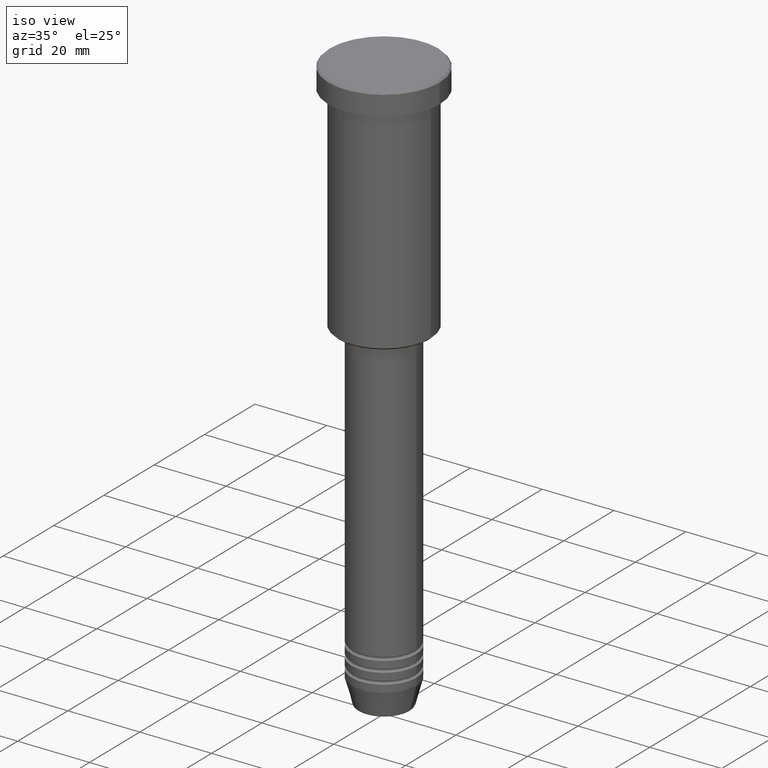
[diagram: clean part render]
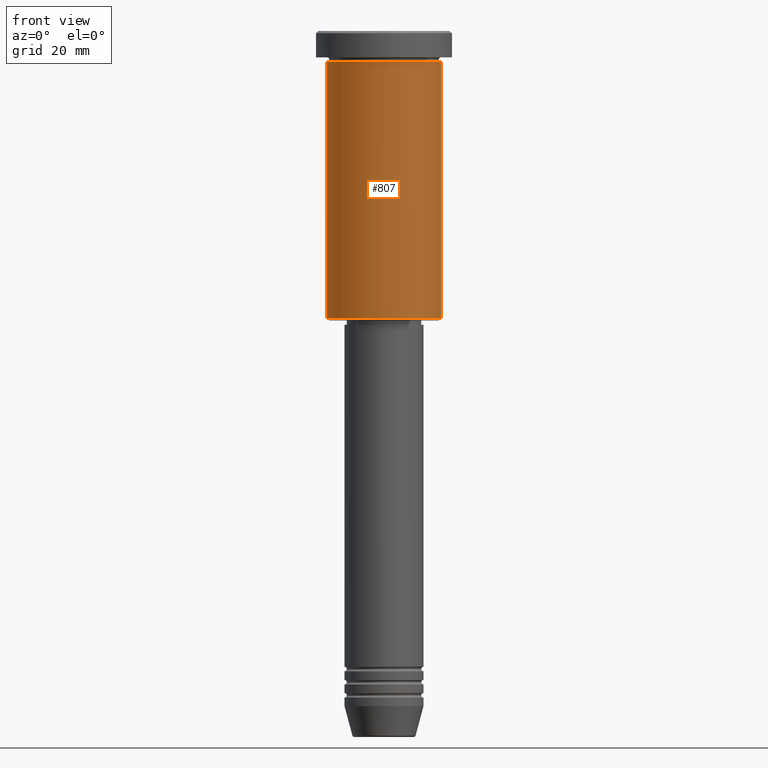
[diagram: tour spotlight — one face highlighted and labeled with its STEP entity id]
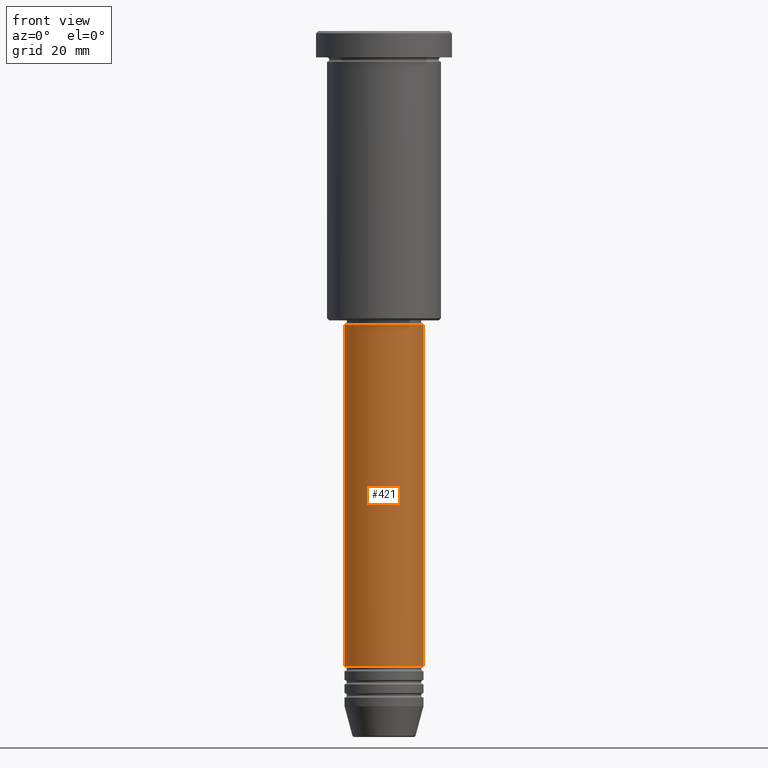
[diagram: tour spotlight — one face highlighted and labeled with its STEP entity id]
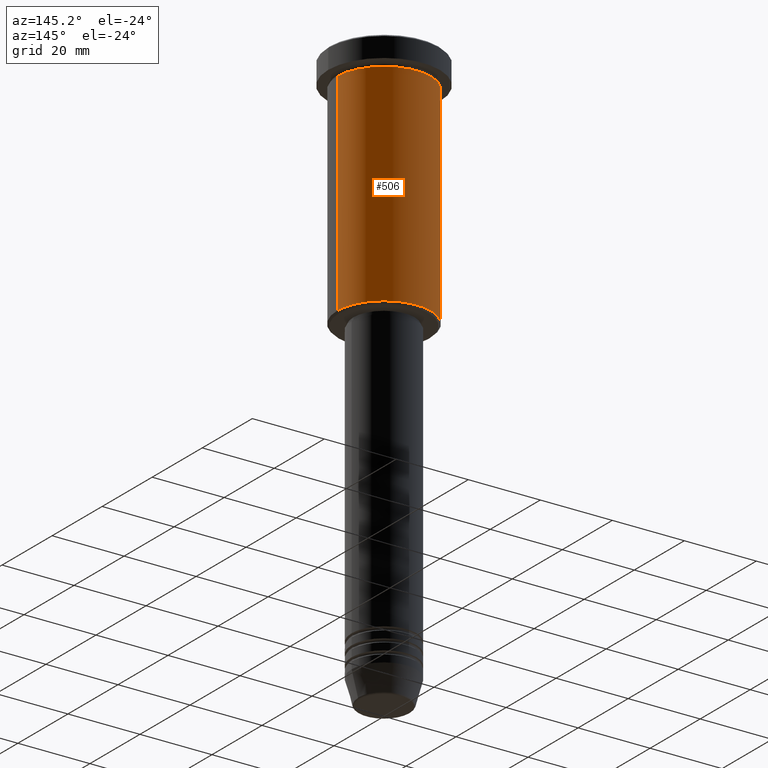
[diagram: tour spotlight — one face highlighted and labeled with its STEP entity id]
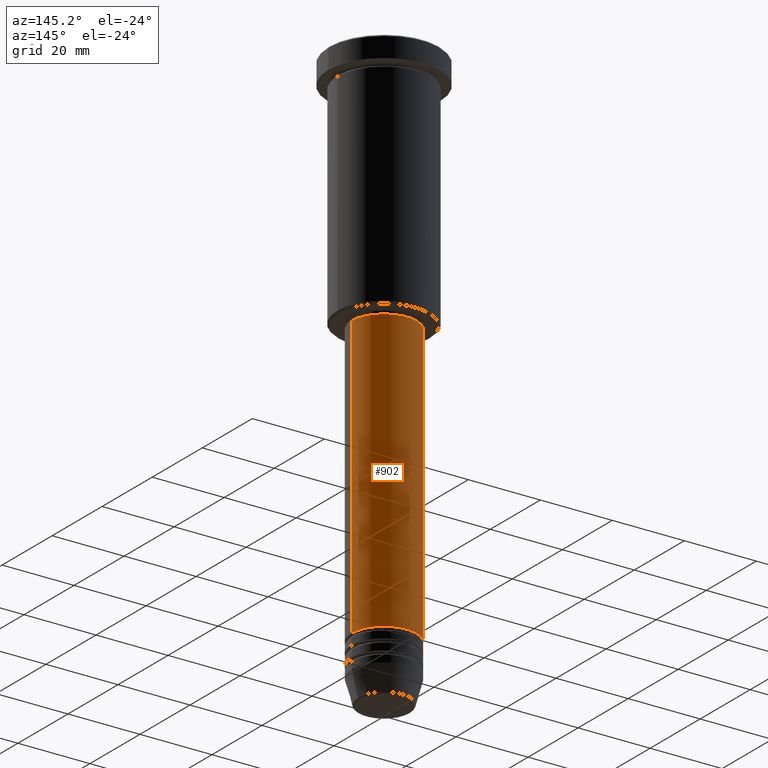
[diagram: tour spotlight — one face highlighted and labeled with its STEP entity id]
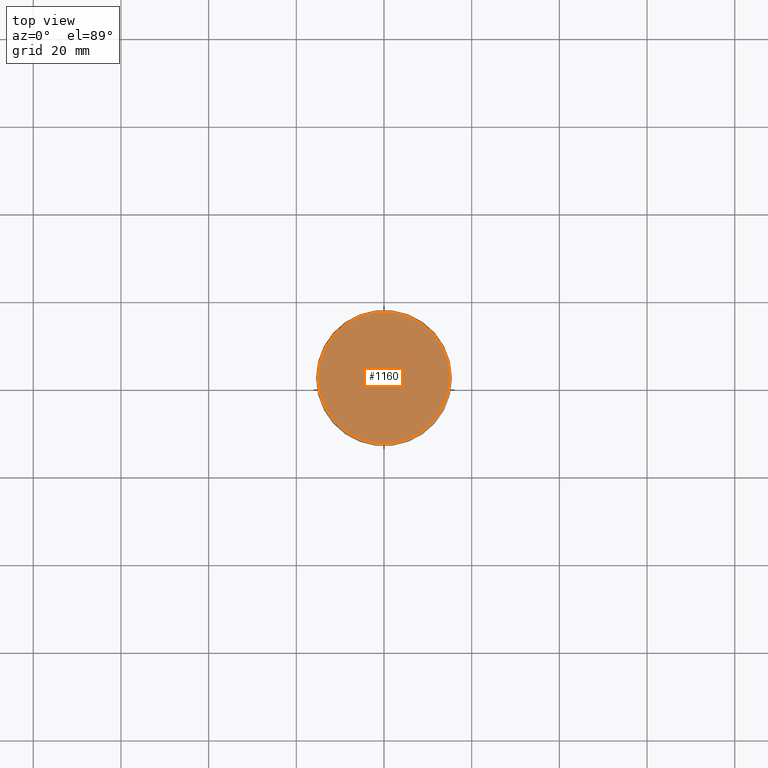
[diagram: tour spotlight — one face highlighted and labeled with its STEP entity id]
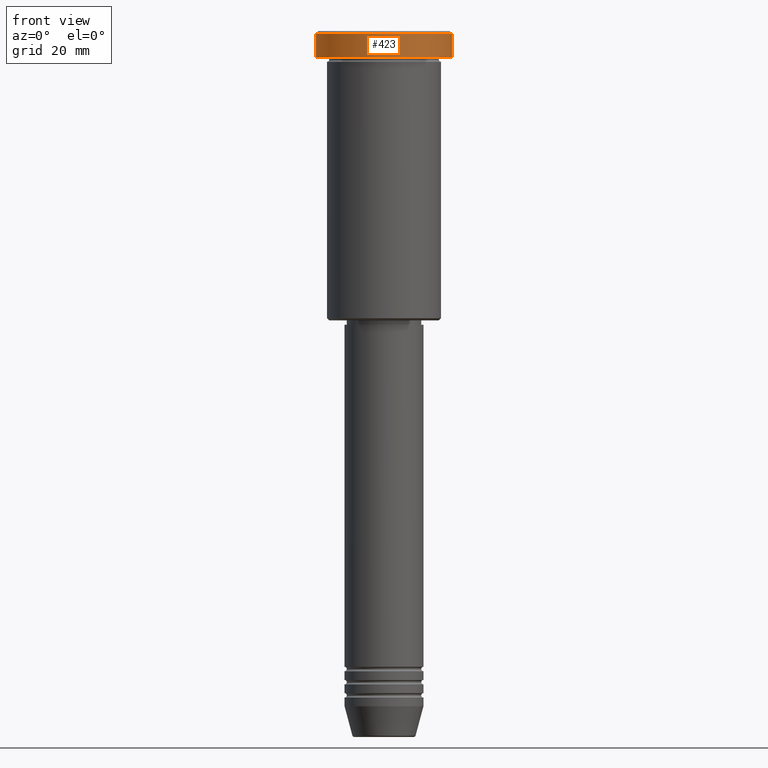
[diagram: tour spotlight — one face highlighted and labeled with its STEP entity id]
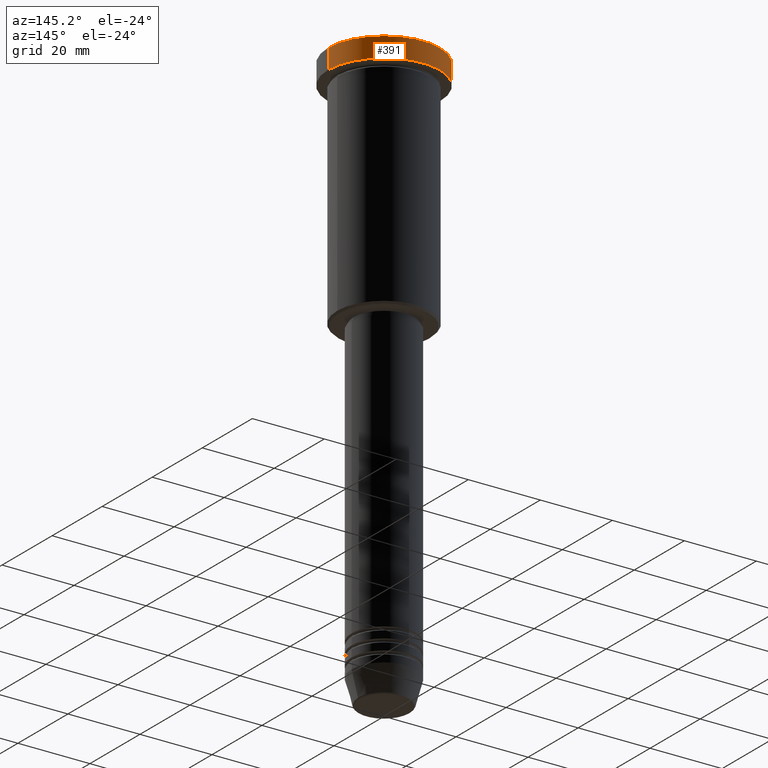
[diagram: tour spotlight — one face highlighted and labeled with its STEP entity id]
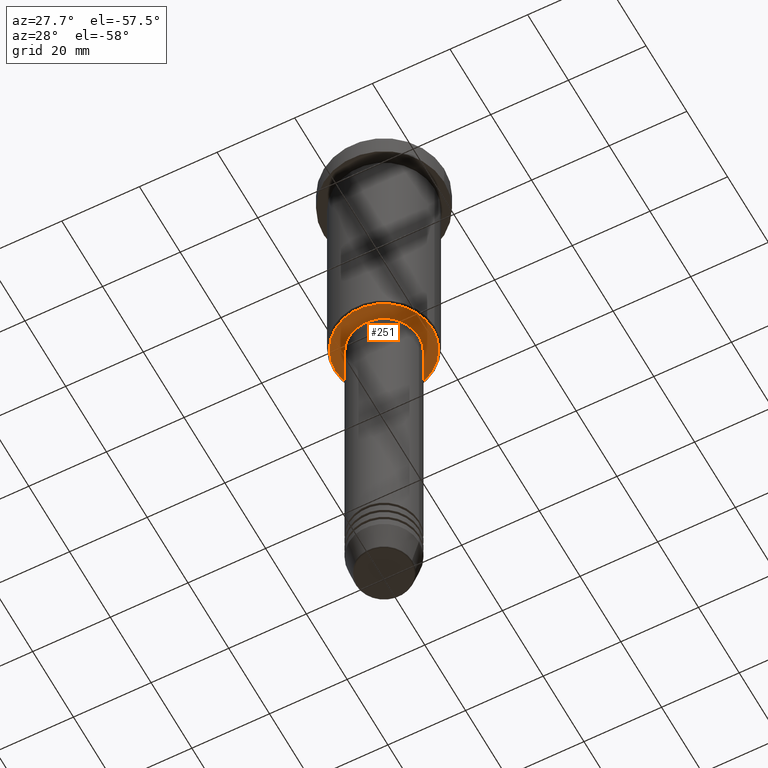
[diagram: tour spotlight — one face highlighted and labeled with its STEP entity id]
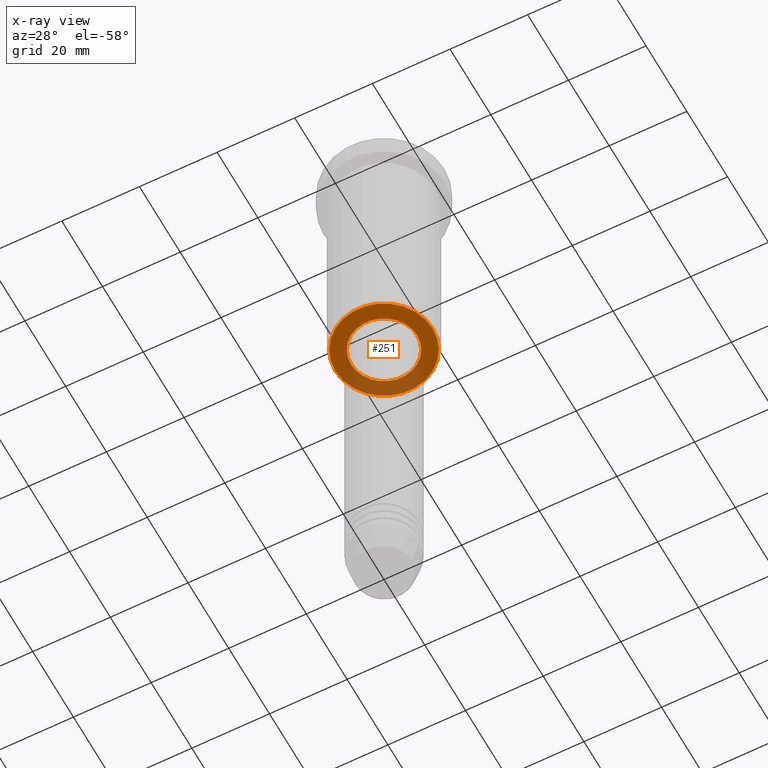
[diagram: x-ray of the same camera — body ghosted, this tour face saturated]
A machine part: a face-by-face anatomy tour. The part has 43 B-rep faces; the first image is the clean iso view, then the 8 largest visible faces are spotlighted one at a time (largest first), each with its STEP entity span.

Face 1 — front view, entity #807. In plain terms, the highlighted cylindrical surface (partial cylindrical patch) has radius 13 mm, axis along (-0, -0, 1).
Definition (entity closure, byte-faithful):
#6 = CARTESIAN_POINT ( 'NONE',  ( 0.000000000000000000, 0.000000000000000000, -6.999999999999995559 ) ) ;
#41 = CYLINDRICAL_SURFACE ( 'NONE', #201, 13.00000000000000000 ) ;
#74 = CARTESIAN_POINT ( 'NONE',  ( 13.00000000000000000, 0.000000000000000000, -6.999999999999995559 ) ) ;
#76 = CARTESIAN_POINT ( 'NONE',  ( 13.00000000000000000, 0.000000000000000000, -65.49999999999997158 ) ) ;
#86 = DIRECTION ( 'NONE',  ( -0.000000000000000000, -0.000000000000000000, 1.000000000000000000 ) ) ;
#89 = VERTEX_POINT ( 'NONE', #74 ) ;
#153 = EDGE_CURVE ( 'NONE', #658, #370, #529, .T. ) ;
#201 = AXIS2_PLACEMENT_3D ( 'NONE', #691, #1150, #1048 ) ;
#215 = EDGE_CURVE ( 'NONE', #950, #89, #474, .T. ) ;
#222 = EDGE_CURVE ( 'NONE', #658, #950, #535, .T. ) ;
#228 = FACE_OUTER_BOUND ( 'NONE', #1050, .T. ) ;
#232 = VECTOR ( 'NONE', #86, 1000.000000000000000 ) ;
#365 = AXIS2_PLACEMENT_3D ( 'NONE', #1019, #553, #843 ) ;
#370 = VERTEX_POINT ( 'NONE', #1045 ) ;
#378 = DIRECTION ( 'NONE',  ( -0.000000000000000000, -0.000000000000000000, 1.000000000000000000 ) ) ;
#457 = DIRECTION ( 'NONE',  ( -0.000000000000000000, -0.000000000000000000, 1.000000000000000000 ) ) ;
#474 = LINE ( 'NONE', #940, #873 ) ;
#529 = LINE ( 'NONE', #623, #232 ) ;
#535 = CIRCLE ( 'NONE', #365, 13.00000000000000000 ) ;
#548 = ORIENTED_EDGE ( 'NONE', *, *, #215, .T. ) ;
#553 = DIRECTION ( 'NONE',  ( -0.000000000000000000, -0.000000000000000000, 1.000000000000000000 ) ) ;
#559 = CARTESIAN_POINT ( 'NONE',  ( -13.00000000000000000, 1.592040838891559095E-15, -65.49999999999997158 ) ) ;
#623 = CARTESIAN_POINT ( 'NONE',  ( -13.00000000000000000, 1.592040838891559095E-15, 0.000000000000000000 ) ) ;
#637 = ORIENTED_EDGE ( 'NONE', *, *, #222, .T. ) ;
#643 = ORIENTED_EDGE ( 'NONE', *, *, #153, .F. ) ;
#658 = VERTEX_POINT ( 'NONE', #559 ) ;
#691 = CARTESIAN_POINT ( 'NONE',  ( 0.000000000000000000, 0.000000000000000000, 0.000000000000000000 ) ) ;
#748 = CIRCLE ( 'NONE', #1016, 13.00000000000000000 ) ;
#807 = ADVANCED_FACE ( 'NONE', ( #228 ), #41, .T. ) ;
#815 = DIRECTION ( 'NONE',  ( 1.000000000000000000, 0.000000000000000000, 0.000000000000000000 ) ) ;
#843 = DIRECTION ( 'NONE',  ( -1.000000000000000000, 0.000000000000000000, 0.000000000000000000 ) ) ;
#873 = VECTOR ( 'NONE', #378, 1000.000000000000000 ) ;
#940 = CARTESIAN_POINT ( 'NONE',  ( 13.00000000000000000, 0.000000000000000000, 0.000000000000000000 ) ) ;
#950 = VERTEX_POINT ( 'NONE', #76 ) ;
#1016 = AXIS2_PLACEMENT_3D ( 'NONE', #6, #457, #815 ) ;
#1019 = CARTESIAN_POINT ( 'NONE',  ( 0.000000000000000000, 0.000000000000000000, -65.49999999999997158 ) ) ;
#1045 = CARTESIAN_POINT ( 'NONE',  ( -13.00000000000000000, 1.592040838891559095E-15, -6.999999999999995559 ) ) ;
#1046 = ORIENTED_EDGE ( 'NONE', *, *, #1173, .F. ) ;
#1048 = DIRECTION ( 'NONE',  ( 1.000000000000000000, 0.000000000000000000, 0.000000000000000000 ) ) ;
#1050 = EDGE_LOOP ( 'NONE', ( #643, #637, #548, #1046 ) ) ;
#1150 = DIRECTION ( 'NONE',  ( -0.000000000000000000, -0.000000000000000000, 1.000000000000000000 ) ) ;
#1173 = EDGE_CURVE ( 'NONE', #370, #89, #748, .T. ) ;

Face 2 — front view, entity #421. In plain terms, the highlighted cylindrical surface (partial cylindrical patch) has radius 9 mm, axis along (-0, -0, 1).
Definition (entity closure, byte-faithful):
#22 = CARTESIAN_POINT ( 'NONE',  ( -9.000000000000000000, 1.102182119232617714E-15, -67.00000000000000000 ) ) ;
#33 = CIRCLE ( 'NONE', #179, 9.000000000000000000 ) ;
#48 = AXIS2_PLACEMENT_3D ( 'NONE', #1140, #968, #403 ) ;
#54 = DIRECTION ( 'NONE',  ( -0.000000000000000000, -0.000000000000000000, 1.000000000000000000 ) ) ;
#92 = DIRECTION ( 'NONE',  ( 1.000000000000000000, 0.000000000000000000, 0.000000000000000000 ) ) ;
#164 = CARTESIAN_POINT ( 'NONE',  ( 9.000000000000000000, 0.000000000000000000, -144.9999999999999716 ) ) ;
#171 = DIRECTION ( 'NONE',  ( 1.000000000000000000, 0.000000000000000000, 0.000000000000000000 ) ) ;
#179 = AXIS2_PLACEMENT_3D ( 'NONE', #1091, #257, #92 ) ;
#192 = EDGE_CURVE ( 'NONE', #943, #494, #33, .T. ) ;
#221 = CYLINDRICAL_SURFACE ( 'NONE', #48, 9.000000000000000000 ) ;
#231 = EDGE_LOOP ( 'NONE', ( #481, #894, #1028, #375 ) ) ;
#257 = DIRECTION ( 'NONE',  ( -0.000000000000000000, -0.000000000000000000, 1.000000000000000000 ) ) ;
#336 = LINE ( 'NONE', #695, #589 ) ;
#375 = ORIENTED_EDGE ( 'NONE', *, *, #593, .F. ) ;
#403 = DIRECTION ( 'NONE',  ( 1.000000000000000000, 0.000000000000000000, 0.000000000000000000 ) ) ;
#421 = ADVANCED_FACE ( 'NONE', ( #1153 ), #221, .T. ) ;
#436 = DIRECTION ( 'NONE',  ( -0.000000000000000000, -0.000000000000000000, 1.000000000000000000 ) ) ;
#481 = ORIENTED_EDGE ( 'NONE', *, *, #942, .F. ) ;
#494 = VERTEX_POINT ( 'NONE', #164 ) ;
#499 = LINE ( 'NONE', #862, #1176 ) ;
#533 = CARTESIAN_POINT ( 'NONE',  ( 0.000000000000000000, 0.000000000000000000, -67.00000000000000000 ) ) ;
#589 = VECTOR ( 'NONE', #436, 1000.000000000000000 ) ;
#593 = EDGE_CURVE ( 'NONE', #661, #613, #956, .T. ) ;
#613 = VERTEX_POINT ( 'NONE', #891 ) ;
#661 = VERTEX_POINT ( 'NONE', #22 ) ;
#695 = CARTESIAN_POINT ( 'NONE',  ( -9.000000000000000000, 1.102182119232617714E-15, 0.000000000000000000 ) ) ;
#700 = DIRECTION ( 'NONE',  ( -0.000000000000000000, -0.000000000000000000, 1.000000000000000000 ) ) ;
#862 = CARTESIAN_POINT ( 'NONE',  ( 9.000000000000000000, 0.000000000000000000, 0.000000000000000000 ) ) ;
#890 = EDGE_CURVE ( 'NONE', #494, #613, #499, .T. ) ;
#891 = CARTESIAN_POINT ( 'NONE',  ( 9.000000000000000000, 0.000000000000000000, -67.00000000000000000 ) ) ;
#894 = ORIENTED_EDGE ( 'NONE', *, *, #192, .T. ) ;
#942 = EDGE_CURVE ( 'NONE', #943, #661, #336, .T. ) ;
#943 = VERTEX_POINT ( 'NONE', #1089 ) ;
#956 = CIRCLE ( 'NONE', #1095, 9.000000000000000000 ) ;
#968 = DIRECTION ( 'NONE',  ( -0.000000000000000000, -0.000000000000000000, 1.000000000000000000 ) ) ;
#1028 = ORIENTED_EDGE ( 'NONE', *, *, #890, .T. ) ;
#1089 = CARTESIAN_POINT ( 'NONE',  ( -9.000000000000000000, 1.102182119232617714E-15, -144.9999999999999716 ) ) ;
#1091 = CARTESIAN_POINT ( 'NONE',  ( 0.000000000000000000, 0.000000000000000000, -144.9999999999999716 ) ) ;
#1095 = AXIS2_PLACEMENT_3D ( 'NONE', #533, #700, #171 ) ;
#1140 = CARTESIAN_POINT ( 'NONE',  ( 0.000000000000000000, 0.000000000000000000, 0.000000000000000000 ) ) ;
#1153 = FACE_OUTER_BOUND ( 'NONE', #231, .T. ) ;
#1176 = VECTOR ( 'NONE', #54, 1000.000000000000000 ) ;

Face 3 — auxiliary view, entity #506. In plain terms, the highlighted cylindrical surface (partial cylindrical patch) has radius 13 mm, axis along (-0, -0, 1).
Definition (entity closure, byte-faithful):
#11 = ORIENTED_EDGE ( 'NONE', *, *, #215, .F. ) ;
#74 = CARTESIAN_POINT ( 'NONE',  ( 13.00000000000000000, 0.000000000000000000, -6.999999999999995559 ) ) ;
#76 = CARTESIAN_POINT ( 'NONE',  ( 13.00000000000000000, 0.000000000000000000, -65.49999999999997158 ) ) ;
#86 = DIRECTION ( 'NONE',  ( -0.000000000000000000, -0.000000000000000000, 1.000000000000000000 ) ) ;
#89 = VERTEX_POINT ( 'NONE', #74 ) ;
#105 = AXIS2_PLACEMENT_3D ( 'NONE', #948, #319, #675 ) ;
#153 = EDGE_CURVE ( 'NONE', #658, #370, #529, .T. ) ;
#162 = AXIS2_PLACEMENT_3D ( 'NONE', #1090, #629, #622 ) ;
#165 = AXIS2_PLACEMENT_3D ( 'NONE', #323, #672, #224 ) ;
#215 = EDGE_CURVE ( 'NONE', #950, #89, #474, .T. ) ;
#224 = DIRECTION ( 'NONE',  ( -1.000000000000000000, 0.000000000000000000, 0.000000000000000000 ) ) ;
#232 = VECTOR ( 'NONE', #86, 1000.000000000000000 ) ;
#274 = ORIENTED_EDGE ( 'NONE', *, *, #864, .T. ) ;
#319 = DIRECTION ( 'NONE',  ( -0.000000000000000000, -0.000000000000000000, 1.000000000000000000 ) ) ;
#323 = CARTESIAN_POINT ( 'NONE',  ( 0.000000000000000000, 0.000000000000000000, -65.49999999999997158 ) ) ;
#369 = ORIENTED_EDGE ( 'NONE', *, *, #876, .F. ) ;
#370 = VERTEX_POINT ( 'NONE', #1045 ) ;
#378 = DIRECTION ( 'NONE',  ( -0.000000000000000000, -0.000000000000000000, 1.000000000000000000 ) ) ;
#474 = LINE ( 'NONE', #940, #873 ) ;
#506 = ADVANCED_FACE ( 'NONE', ( #882 ), #617, .T. ) ;
#529 = LINE ( 'NONE', #623, #232 ) ;
#559 = CARTESIAN_POINT ( 'NONE',  ( -13.00000000000000000, 1.592040838891559095E-15, -65.49999999999997158 ) ) ;
#609 = CIRCLE ( 'NONE', #105, 13.00000000000000000 ) ;
#617 = CYLINDRICAL_SURFACE ( 'NONE', #162, 13.00000000000000000 ) ;
#622 = DIRECTION ( 'NONE',  ( 1.000000000000000000, 0.000000000000000000, 0.000000000000000000 ) ) ;
#623 = CARTESIAN_POINT ( 'NONE',  ( -13.00000000000000000, 1.592040838891559095E-15, 0.000000000000000000 ) ) ;
#629 = DIRECTION ( 'NONE',  ( -0.000000000000000000, -0.000000000000000000, 1.000000000000000000 ) ) ;
#658 = VERTEX_POINT ( 'NONE', #559 ) ;
#670 = CIRCLE ( 'NONE', #165, 13.00000000000000000 ) ;
#672 = DIRECTION ( 'NONE',  ( -0.000000000000000000, -0.000000000000000000, 1.000000000000000000 ) ) ;
#675 = DIRECTION ( 'NONE',  ( 1.000000000000000000, 0.000000000000000000, 0.000000000000000000 ) ) ;
#864 = EDGE_CURVE ( 'NONE', #950, #658, #670, .T. ) ;
#873 = VECTOR ( 'NONE', #378, 1000.000000000000000 ) ;
#876 = EDGE_CURVE ( 'NONE', #89, #370, #609, .T. ) ;
#882 = FACE_OUTER_BOUND ( 'NONE', #990, .T. ) ;
#904 = ORIENTED_EDGE ( 'NONE', *, *, #153, .T. ) ;
#940 = CARTESIAN_POINT ( 'NONE',  ( 13.00000000000000000, 0.000000000000000000, 0.000000000000000000 ) ) ;
#948 = CARTESIAN_POINT ( 'NONE',  ( 0.000000000000000000, 0.000000000000000000, -6.999999999999995559 ) ) ;
#950 = VERTEX_POINT ( 'NONE', #76 ) ;
#990 = EDGE_LOOP ( 'NONE', ( #274, #904, #369, #11 ) ) ;
#1045 = CARTESIAN_POINT ( 'NONE',  ( -13.00000000000000000, 1.592040838891559095E-15, -6.999999999999995559 ) ) ;
#1090 = CARTESIAN_POINT ( 'NONE',  ( 0.000000000000000000, 0.000000000000000000, 0.000000000000000000 ) ) ;

Face 4 — auxiliary view, entity #902. In plain terms, the highlighted cylindrical surface (partial cylindrical patch) has radius 9 mm, axis along (-0, -0, 1).
Definition (entity closure, byte-faithful):
#4 = ORIENTED_EDGE ( 'NONE', *, *, #931, .T. ) ;
#14 = AXIS2_PLACEMENT_3D ( 'NONE', #402, #315, #583 ) ;
#22 = CARTESIAN_POINT ( 'NONE',  ( -9.000000000000000000, 1.102182119232617714E-15, -67.00000000000000000 ) ) ;
#54 = DIRECTION ( 'NONE',  ( -0.000000000000000000, -0.000000000000000000, 1.000000000000000000 ) ) ;
#72 = DIRECTION ( 'NONE',  ( -0.000000000000000000, -0.000000000000000000, 1.000000000000000000 ) ) ;
#102 = ORIENTED_EDGE ( 'NONE', *, *, #942, .T. ) ;
#164 = CARTESIAN_POINT ( 'NONE',  ( 9.000000000000000000, 0.000000000000000000, -144.9999999999999716 ) ) ;
#211 = ORIENTED_EDGE ( 'NONE', *, *, #855, .F. ) ;
#235 = CYLINDRICAL_SURFACE ( 'NONE', #518, 9.000000000000000000 ) ;
#256 = CIRCLE ( 'NONE', #897, 9.000000000000000000 ) ;
#315 = DIRECTION ( 'NONE',  ( -0.000000000000000000, -0.000000000000000000, 1.000000000000000000 ) ) ;
#336 = LINE ( 'NONE', #695, #589 ) ;
#402 = CARTESIAN_POINT ( 'NONE',  ( 0.000000000000000000, 0.000000000000000000, -67.00000000000000000 ) ) ;
#436 = DIRECTION ( 'NONE',  ( -0.000000000000000000, -0.000000000000000000, 1.000000000000000000 ) ) ;
#494 = VERTEX_POINT ( 'NONE', #164 ) ;
#499 = LINE ( 'NONE', #862, #1176 ) ;
#516 = DIRECTION ( 'NONE',  ( 1.000000000000000000, 0.000000000000000000, 0.000000000000000000 ) ) ;
#518 = AXIS2_PLACEMENT_3D ( 'NONE', #592, #961, #516 ) ;
#583 = DIRECTION ( 'NONE',  ( 1.000000000000000000, 0.000000000000000000, 0.000000000000000000 ) ) ;
#589 = VECTOR ( 'NONE', #436, 1000.000000000000000 ) ;
#592 = CARTESIAN_POINT ( 'NONE',  ( 0.000000000000000000, 0.000000000000000000, 0.000000000000000000 ) ) ;
#613 = VERTEX_POINT ( 'NONE', #891 ) ;
#661 = VERTEX_POINT ( 'NONE', #22 ) ;
#687 = CIRCLE ( 'NONE', #14, 9.000000000000000000 ) ;
#695 = CARTESIAN_POINT ( 'NONE',  ( -9.000000000000000000, 1.102182119232617714E-15, 0.000000000000000000 ) ) ;
#809 = DIRECTION ( 'NONE',  ( 1.000000000000000000, 0.000000000000000000, 0.000000000000000000 ) ) ;
#855 = EDGE_CURVE ( 'NONE', #613, #661, #687, .T. ) ;
#862 = CARTESIAN_POINT ( 'NONE',  ( 9.000000000000000000, 0.000000000000000000, 0.000000000000000000 ) ) ;
#885 = CARTESIAN_POINT ( 'NONE',  ( 0.000000000000000000, 0.000000000000000000, -144.9999999999999716 ) ) ;
#890 = EDGE_CURVE ( 'NONE', #494, #613, #499, .T. ) ;
#891 = CARTESIAN_POINT ( 'NONE',  ( 9.000000000000000000, 0.000000000000000000, -67.00000000000000000 ) ) ;
#897 = AXIS2_PLACEMENT_3D ( 'NONE', #885, #72, #809 ) ;
#902 = ADVANCED_FACE ( 'NONE', ( #1052 ), #235, .T. ) ;
#931 = EDGE_CURVE ( 'NONE', #494, #943, #256, .T. ) ;
#942 = EDGE_CURVE ( 'NONE', #943, #661, #336, .T. ) ;
#943 = VERTEX_POINT ( 'NONE', #1089 ) ;
#961 = DIRECTION ( 'NONE',  ( -0.000000000000000000, -0.000000000000000000, 1.000000000000000000 ) ) ;
#1008 = EDGE_LOOP ( 'NONE', ( #4, #102, #211, #1066 ) ) ;
#1052 = FACE_OUTER_BOUND ( 'NONE', #1008, .T. ) ;
#1066 = ORIENTED_EDGE ( 'NONE', *, *, #890, .F. ) ;
#1089 = CARTESIAN_POINT ( 'NONE',  ( -9.000000000000000000, 1.102182119232617714E-15, -144.9999999999999716 ) ) ;
#1176 = VECTOR ( 'NONE', #54, 1000.000000000000000 ) ;

Face 5 — top view, entity #1160. In plain terms, the highlighted planar face has unit normal (0, -0, 1).
Definition (entity closure, byte-faithful):
#250 = VERTEX_POINT ( 'NONE', #1126 ) ;
#293 = ORIENTED_EDGE ( 'NONE', *, *, #851, .T. ) ;
#363 = PLANE ( 'NONE',  #445 ) ;
#416 = CARTESIAN_POINT ( 'NONE',  ( 0.000000000000000000, 0.000000000000000000, 0.000000000000000000 ) ) ;
#445 = AXIS2_PLACEMENT_3D ( 'NONE', #539, #905, #644 ) ;
#482 = AXIS2_PLACEMENT_3D ( 'NONE', #416, #598, #773 ) ;
#488 = CARTESIAN_POINT ( 'NONE',  ( 15.00000000000001421, 1.867586368699714559E-15, 0.000000000000000000 ) ) ;
#539 = CARTESIAN_POINT ( 'NONE',  ( 0.000000000000000000, 0.000000000000000000, 0.000000000000000000 ) ) ;
#552 = CIRCLE ( 'NONE', #482, 15.00000000000001421 ) ;
#582 = EDGE_LOOP ( 'NONE', ( #293, #722 ) ) ;
#598 = DIRECTION ( 'NONE',  ( -0.000000000000000000, -0.000000000000000000, 1.000000000000000000 ) ) ;
#628 = CIRCLE ( 'NONE', #1038, 15.00000000000001421 ) ;
#644 = DIRECTION ( 'NONE',  ( 1.000000000000000000, 0.000000000000000000, 0.000000000000000000 ) ) ;
#722 = ORIENTED_EDGE ( 'NONE', *, *, #777, .T. ) ;
#766 = VERTEX_POINT ( 'NONE', #488 ) ;
#773 = DIRECTION ( 'NONE',  ( 1.000000000000000000, 0.000000000000000000, 0.000000000000000000 ) ) ;
#777 = EDGE_CURVE ( 'NONE', #766, #250, #552, .T. ) ;
#851 = EDGE_CURVE ( 'NONE', #250, #766, #628, .T. ) ;
#856 = DIRECTION ( 'NONE',  ( -0.000000000000000000, -0.000000000000000000, 1.000000000000000000 ) ) ;
#905 = DIRECTION ( 'NONE',  ( 0.000000000000000000, -0.000000000000000000, 1.000000000000000000 ) ) ;
#1029 = FACE_OUTER_BOUND ( 'NONE', #582, .T. ) ;
#1038 = AXIS2_PLACEMENT_3D ( 'NONE', #1138, #856, #1131 ) ;
#1126 = CARTESIAN_POINT ( 'NONE',  ( -15.00000000000001421, 0.000000000000000000, 0.000000000000000000 ) ) ;
#1131 = DIRECTION ( 'NONE',  ( 1.000000000000000000, 0.000000000000000000, 0.000000000000000000 ) ) ;
#1138 = CARTESIAN_POINT ( 'NONE',  ( 0.000000000000000000, 0.000000000000000000, 0.000000000000000000 ) ) ;
#1160 = ADVANCED_FACE ( 'NONE', ( #1029 ), #363, .T. ) ;

Face 6 — front view, entity #423. In plain terms, the highlighted cylindrical surface (partial cylindrical patch) has radius 15.5 mm, axis along (-0, -0, 1).
Definition (entity closure, byte-faithful):
#37 = CARTESIAN_POINT ( 'NONE',  ( -15.50000000000000000, 1.898202538678397557E-15, 0.000000000000000000 ) ) ;
#51 = DIRECTION ( 'NONE',  ( -0.000000000000000000, -0.000000000000000000, 1.000000000000000000 ) ) ;
#78 = CARTESIAN_POINT ( 'NONE',  ( 15.50000000000000000, 0.000000000000000000, -5.999999999999995559 ) ) ;
#121 = CIRCLE ( 'NONE', #275, 15.50000000000000000 ) ;
#205 = DIRECTION ( 'NONE',  ( -0.000000000000000000, -0.000000000000000000, 1.000000000000000000 ) ) ;
#207 = VERTEX_POINT ( 'NONE', #926 ) ;
#233 = AXIS2_PLACEMENT_3D ( 'NONE', #1001, #458, #1069 ) ;
#260 = CARTESIAN_POINT ( 'NONE',  ( 15.50000000000000000, 0.000000000000000000, -0.4999999999999848455 ) ) ;
#275 = AXIS2_PLACEMENT_3D ( 'NONE', #747, #51, #1162 ) ;
#306 = VERTEX_POINT ( 'NONE', #569 ) ;
#335 = EDGE_CURVE ( 'NONE', #207, #557, #121, .T. ) ;
#394 = CARTESIAN_POINT ( 'NONE',  ( 15.50000000000000000, 0.000000000000000000, 0.000000000000000000 ) ) ;
#401 = ORIENTED_EDGE ( 'NONE', *, *, #615, .F. ) ;
#410 = EDGE_LOOP ( 'NONE', ( #401, #927, #1085, #674 ) ) ;
#413 = DIRECTION ( 'NONE',  ( -0.000000000000000000, -0.000000000000000000, 1.000000000000000000 ) ) ;
#423 = ADVANCED_FACE ( 'NONE', ( #489 ), #429, .T. ) ;
#429 = CYLINDRICAL_SURFACE ( 'NONE', #515, 15.50000000000000000 ) ;
#458 = DIRECTION ( 'NONE',  ( 0.000000000000000000, 0.000000000000000000, -1.000000000000000000 ) ) ;
#489 = FACE_OUTER_BOUND ( 'NONE', #410, .T. ) ;
#493 = CARTESIAN_POINT ( 'NONE',  ( 0.000000000000000000, 0.000000000000000000, 0.000000000000000000 ) ) ;
#515 = AXIS2_PLACEMENT_3D ( 'NONE', #493, #413, #1135 ) ;
#527 = EDGE_CURVE ( 'NONE', #610, #306, #745, .T. ) ;
#557 = VERTEX_POINT ( 'NONE', #78 ) ;
#569 = CARTESIAN_POINT ( 'NONE',  ( -15.50000000000000000, 1.898202538678397557E-15, -0.4999999999999848455 ) ) ;
#610 = VERTEX_POINT ( 'NONE', #260 ) ;
#615 = EDGE_CURVE ( 'NONE', #207, #306, #829, .T. ) ;
#655 = DIRECTION ( 'NONE',  ( -0.000000000000000000, -0.000000000000000000, 1.000000000000000000 ) ) ;
#668 = VECTOR ( 'NONE', #655, 1000.000000000000000 ) ;
#674 = ORIENTED_EDGE ( 'NONE', *, *, #527, .T. ) ;
#679 = EDGE_CURVE ( 'NONE', #557, #610, #848, .T. ) ;
#745 = CIRCLE ( 'NONE', #233, 15.50000000000000000 ) ;
#746 = VECTOR ( 'NONE', #205, 1000.000000000000000 ) ;
#747 = CARTESIAN_POINT ( 'NONE',  ( 0.000000000000000000, 0.000000000000000000, -5.999999999999995559 ) ) ;
#829 = LINE ( 'NONE', #37, #668 ) ;
#848 = LINE ( 'NONE', #394, #746 ) ;
#926 = CARTESIAN_POINT ( 'NONE',  ( -15.50000000000000000, 1.898202538678397557E-15, -5.999999999999995559 ) ) ;
#927 = ORIENTED_EDGE ( 'NONE', *, *, #335, .T. ) ;
#1001 = CARTESIAN_POINT ( 'NONE',  ( 0.000000000000000000, 0.000000000000000000, -0.4999999999999848455 ) ) ;
#1069 = DIRECTION ( 'NONE',  ( 1.000000000000000000, 0.000000000000000000, 0.000000000000000000 ) ) ;
#1085 = ORIENTED_EDGE ( 'NONE', *, *, #679, .T. ) ;
#1135 = DIRECTION ( 'NONE',  ( 1.000000000000000000, 0.000000000000000000, 0.000000000000000000 ) ) ;
#1162 = DIRECTION ( 'NONE',  ( 1.000000000000000000, 0.000000000000000000, 0.000000000000000000 ) ) ;

Face 7 — auxiliary view, entity #391. In plain terms, the highlighted cylindrical surface (partial cylindrical patch) has radius 15.5 mm, axis along (-0, -0, 1).
Definition (entity closure, byte-faithful):
#37 = CARTESIAN_POINT ( 'NONE',  ( -15.50000000000000000, 1.898202538678397557E-15, 0.000000000000000000 ) ) ;
#67 = CYLINDRICAL_SURFACE ( 'NONE', #1171, 15.50000000000000000 ) ;
#78 = CARTESIAN_POINT ( 'NONE',  ( 15.50000000000000000, 0.000000000000000000, -5.999999999999995559 ) ) ;
#124 = AXIS2_PLACEMENT_3D ( 'NONE', #359, #718, #988 ) ;
#147 = DIRECTION ( 'NONE',  ( 1.000000000000000000, 0.000000000000000000, 0.000000000000000000 ) ) ;
#205 = DIRECTION ( 'NONE',  ( -0.000000000000000000, -0.000000000000000000, 1.000000000000000000 ) ) ;
#207 = VERTEX_POINT ( 'NONE', #926 ) ;
#260 = CARTESIAN_POINT ( 'NONE',  ( 15.50000000000000000, 0.000000000000000000, -0.4999999999999848455 ) ) ;
#306 = VERTEX_POINT ( 'NONE', #569 ) ;
#359 = CARTESIAN_POINT ( 'NONE',  ( 0.000000000000000000, 0.000000000000000000, -5.999999999999995559 ) ) ;
#391 = ADVANCED_FACE ( 'NONE', ( #789 ), #67, .T. ) ;
#394 = CARTESIAN_POINT ( 'NONE',  ( 15.50000000000000000, 0.000000000000000000, 0.000000000000000000 ) ) ;
#460 = ORIENTED_EDGE ( 'NONE', *, *, #719, .T. ) ;
#485 = CARTESIAN_POINT ( 'NONE',  ( 0.000000000000000000, 0.000000000000000000, -0.4999999999999848455 ) ) ;
#557 = VERTEX_POINT ( 'NONE', #78 ) ;
#569 = CARTESIAN_POINT ( 'NONE',  ( -15.50000000000000000, 1.898202538678397557E-15, -0.4999999999999848455 ) ) ;
#610 = VERTEX_POINT ( 'NONE', #260 ) ;
#615 = EDGE_CURVE ( 'NONE', #207, #306, #829, .T. ) ;
#655 = DIRECTION ( 'NONE',  ( -0.000000000000000000, -0.000000000000000000, 1.000000000000000000 ) ) ;
#668 = VECTOR ( 'NONE', #655, 1000.000000000000000 ) ;
#679 = EDGE_CURVE ( 'NONE', #557, #610, #848, .T. ) ;
#704 = EDGE_LOOP ( 'NONE', ( #957, #1034, #460, #1127 ) ) ;
#718 = DIRECTION ( 'NONE',  ( -0.000000000000000000, -0.000000000000000000, 1.000000000000000000 ) ) ;
#719 = EDGE_CURVE ( 'NONE', #306, #610, #1015, .T. ) ;
#729 = DIRECTION ( 'NONE',  ( 0.000000000000000000, 0.000000000000000000, -1.000000000000000000 ) ) ;
#746 = VECTOR ( 'NONE', #205, 1000.000000000000000 ) ;
#789 = FACE_OUTER_BOUND ( 'NONE', #704, .T. ) ;
#823 = CIRCLE ( 'NONE', #124, 15.50000000000000000 ) ;
#829 = LINE ( 'NONE', #37, #668 ) ;
#848 = LINE ( 'NONE', #394, #746 ) ;
#868 = DIRECTION ( 'NONE',  ( -0.000000000000000000, -0.000000000000000000, 1.000000000000000000 ) ) ;
#926 = CARTESIAN_POINT ( 'NONE',  ( -15.50000000000000000, 1.898202538678397557E-15, -5.999999999999995559 ) ) ;
#957 = ORIENTED_EDGE ( 'NONE', *, *, #1058, .T. ) ;
#963 = CARTESIAN_POINT ( 'NONE',  ( 0.000000000000000000, 0.000000000000000000, 0.000000000000000000 ) ) ;
#988 = DIRECTION ( 'NONE',  ( 1.000000000000000000, 0.000000000000000000, 0.000000000000000000 ) ) ;
#1015 = CIRCLE ( 'NONE', #1072, 15.50000000000000000 ) ;
#1034 = ORIENTED_EDGE ( 'NONE', *, *, #615, .T. ) ;
#1058 = EDGE_CURVE ( 'NONE', #557, #207, #823, .T. ) ;
#1072 = AXIS2_PLACEMENT_3D ( 'NONE', #485, #729, #1100 ) ;
#1100 = DIRECTION ( 'NONE',  ( 1.000000000000000000, 0.000000000000000000, 0.000000000000000000 ) ) ;
#1127 = ORIENTED_EDGE ( 'NONE', *, *, #679, .F. ) ;
#1171 = AXIS2_PLACEMENT_3D ( 'NONE', #963, #868, #147 ) ;

Face 8 — auxiliary view, entity #251. An x-ray twin of the same camera follows (body ghosted, this face saturated) — the face is partly hidden behind the body. In plain terms, the highlighted planar face has unit normal (0, 0, -1).
Definition (entity closure, byte-faithful):
#23 = EDGE_CURVE ( 'NONE', #65, #812, #71, .T. ) ;
#26 = ORIENTED_EDGE ( 'NONE', *, *, #23, .T. ) ;
#42 = CARTESIAN_POINT ( 'NONE',  ( 0.000000000000000000, 13.00000000000000000, -65.99999999999998579 ) ) ;
#55 = DIRECTION ( 'NONE',  ( 1.000000000000000000, 0.000000000000000000, 0.000000000000000000 ) ) ;
#60 = CARTESIAN_POINT ( 'NONE',  ( 0.000000000000000000, 0.000000000000000000, -65.99999999999998579 ) ) ;
#65 = VERTEX_POINT ( 'NONE', #984 ) ;
#71 = CIRCLE ( 'NONE', #484, 12.49999999999998401 ) ;
#128 = FACE_OUTER_BOUND ( 'NONE', #440, .T. ) ;
#157 = DIRECTION ( 'NONE',  ( -0.000000000000000000, -0.000000000000000000, 1.000000000000000000 ) ) ;
#178 = EDGE_CURVE ( 'NONE', #693, #712, #683, .T. ) ;
#214 = PLANE ( 'NONE',  #590 ) ;
#251 = ADVANCED_FACE ( 'NONE', ( #128, #759 ), #214, .T. ) ;
#328 = CIRCLE ( 'NONE', #405, 8.499999999999998224 ) ;
#374 = DIRECTION ( 'NONE',  ( 0.000000000000000000, 0.000000000000000000, -1.000000000000000000 ) ) ;
#383 = CARTESIAN_POINT ( 'NONE',  ( -8.499999999999998224, 1.040949779275249943E-15, -65.99999999999998579 ) ) ;
#386 = CIRCLE ( 'NONE', #390, 12.49999999999998401 ) ;
#390 = AXIS2_PLACEMENT_3D ( 'NONE', #604, #793, #993 ) ;
#398 = EDGE_CURVE ( 'NONE', #712, #693, #328, .T. ) ;
#400 = DIRECTION ( 'NONE',  ( -1.000000000000000000, 0.000000000000000000, -0.000000000000000000 ) ) ;
#405 = AXIS2_PLACEMENT_3D ( 'NONE', #60, #157, #55 ) ;
#440 = EDGE_LOOP ( 'NONE', ( #874, #26 ) ) ;
#484 = AXIS2_PLACEMENT_3D ( 'NONE', #854, #1156, #977 ) ;
#487 = EDGE_LOOP ( 'NONE', ( #580, #1177 ) ) ;
#536 = DIRECTION ( 'NONE',  ( -0.000000000000000000, -0.000000000000000000, 1.000000000000000000 ) ) ;
#543 = EDGE_CURVE ( 'NONE', #812, #65, #386, .T. ) ;
#580 = ORIENTED_EDGE ( 'NONE', *, *, #398, .T. ) ;
#590 = AXIS2_PLACEMENT_3D ( 'NONE', #42, #374, #400 ) ;
#604 = CARTESIAN_POINT ( 'NONE',  ( 0.000000000000000000, 0.000000000000000000, -65.99999999999998579 ) ) ;
#683 = CIRCLE ( 'NONE', #893, 8.499999999999998224 ) ;
#693 = VERTEX_POINT ( 'NONE', #383 ) ;
#712 = VERTEX_POINT ( 'NONE', #1030 ) ;
#759 = FACE_BOUND ( 'NONE', #487, .T. ) ;
#793 = DIRECTION ( 'NONE',  ( 0.000000000000000000, 0.000000000000000000, -1.000000000000000000 ) ) ;
#794 = DIRECTION ( 'NONE',  ( 1.000000000000000000, 0.000000000000000000, 0.000000000000000000 ) ) ;
#812 = VERTEX_POINT ( 'NONE', #945 ) ;
#854 = CARTESIAN_POINT ( 'NONE',  ( 0.000000000000000000, 0.000000000000000000, -65.99999999999998579 ) ) ;
#874 = ORIENTED_EDGE ( 'NONE', *, *, #543, .T. ) ;
#883 = CARTESIAN_POINT ( 'NONE',  ( 0.000000000000000000, 0.000000000000000000, -65.99999999999998579 ) ) ;
#893 = AXIS2_PLACEMENT_3D ( 'NONE', #883, #536, #794 ) ;
#945 = CARTESIAN_POINT ( 'NONE',  ( 12.49999999999998401, 0.000000000000000000, -65.99999999999998579 ) ) ;
#977 = DIRECTION ( 'NONE',  ( -1.000000000000000000, 0.000000000000000000, 0.000000000000000000 ) ) ;
#984 = CARTESIAN_POINT ( 'NONE',  ( -12.49999999999998401, 1.561424668912874125E-15, -65.99999999999998579 ) ) ;
#993 = DIRECTION ( 'NONE',  ( -1.000000000000000000, 0.000000000000000000, 0.000000000000000000 ) ) ;
#1030 = CARTESIAN_POINT ( 'NONE',  ( 8.499999999999998224, 0.000000000000000000, -65.99999999999998579 ) ) ;
#1156 = DIRECTION ( 'NONE',  ( 0.000000000000000000, 0.000000000000000000, -1.000000000000000000 ) ) ;
#1177 = ORIENTED_EDGE ( 'NONE', *, *, #178, .T. ) ;